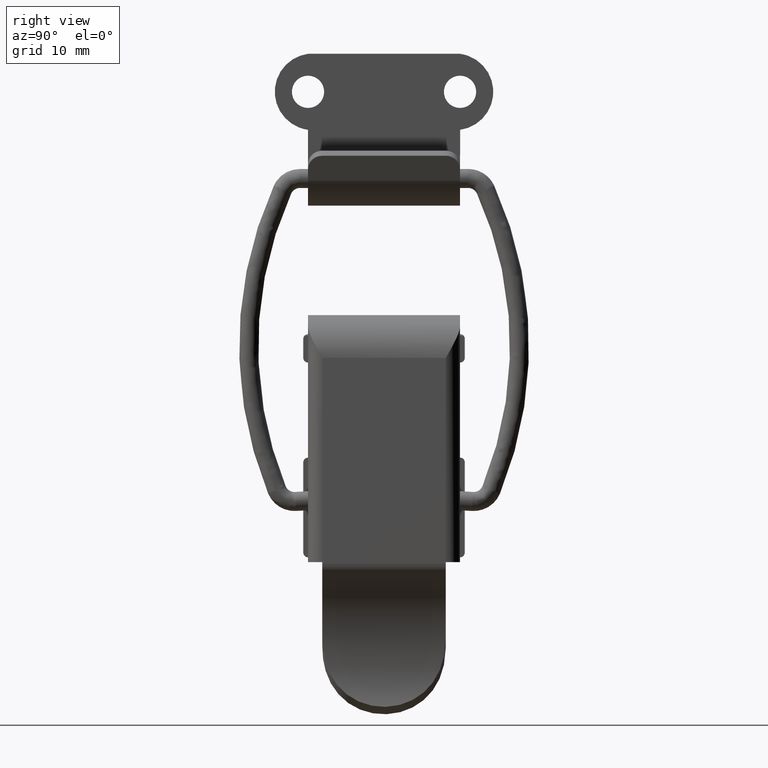
[diagram: clean part render]
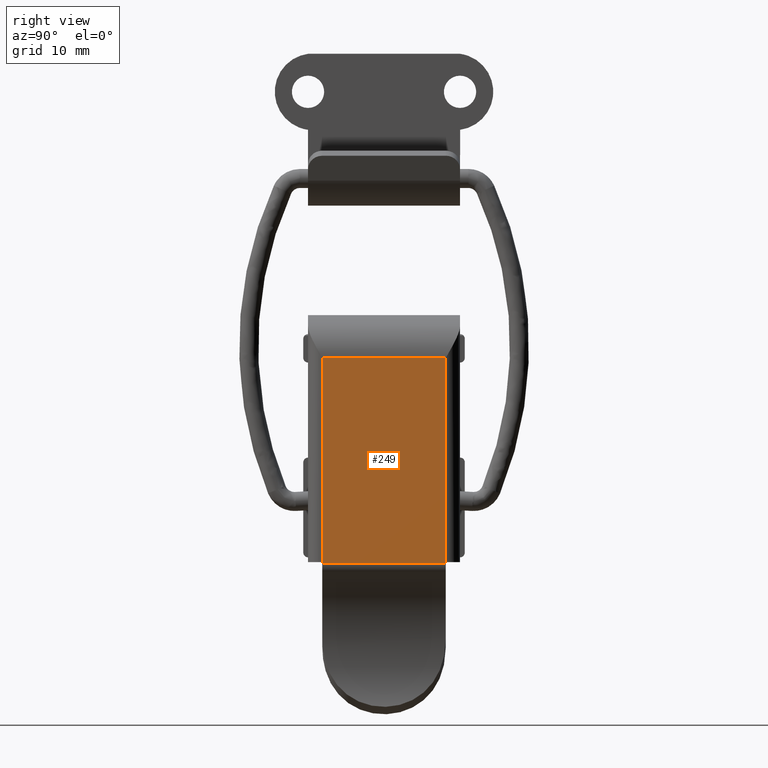
[diagram: same view with one face highlighted and labeled with its STEP entity id]
A machine part, right view. The second image highlights one B-rep face of the part: STEP entity #249.
In plain terms, the highlighted planar face has unit normal (1, 0, 0).
Its self-contained STEP definition (entity closure, byte-faithful):
#249=ADVANCED_FACE('',(#949),#948,.T.);
#948=PLANE('',#2100);
#949=FACE_OUTER_BOUND('',#2101,.T.);
#2097=CARTESIAN_POINT('',(8.00000000000E+00,2.00000000000E-01,1.76635544315E+01));
#2098=DIRECTION('',(1.00000000000E+00,0.00000000000E+00,0.00000000000E+00));
#2099=DIRECTION('',(0.00000000000E+00,0.00000000000E+00,-1.00000000000E+00));
#2100=AXIS2_PLACEMENT_3D('',#2097,#2098,#2099);
#2101=EDGE_LOOP('',(#2764,#2765,#2766,#2767,#2768,#2769));
#2764=ORIENTED_EDGE('',*,*,#3286,.T.);
#2765=ORIENTED_EDGE('',*,*,#3290,.T.);
#2766=ORIENTED_EDGE('',*,*,#3291,.T.);
#2767=ORIENTED_EDGE('',*,*,#3292,.F.);
#2768=ORIENTED_EDGE('',*,*,#3293,.F.);
#2769=ORIENTED_EDGE('',*,*,#3294,.T.);
#3286=EDGE_CURVE('',#4570,#4563,#4571,.T.);
#3290=EDGE_CURVE('',#4563,#4597,#4598,.T.);
#3291=EDGE_CURVE('',#4597,#4604,#4605,.T.);
#3292=EDGE_CURVE('',#4611,#4604,#4612,.T.);
#3293=EDGE_CURVE('',#4618,#4611,#4619,.T.);
#3294=EDGE_CURVE('',#4618,#4570,#4625,.T.);
#4563=VERTEX_POINT('',#6436);
#4570=VERTEX_POINT('',#6449);
#4571=LINE('',#6450,#6451);
#4597=VERTEX_POINT('',#6474);
#4598=LINE('',#6475,#6476);
#4604=VERTEX_POINT('',#6478);
#4605=LINE('',#6479,#6480);
#4611=VERTEX_POINT('',#6482);
#4612=LINE('',#6483,#6484);
#4618=VERTEX_POINT('',#6486);
#4619=LINE('',#6487,#6488);
#4625=LINE('',#6490,#6491);
#6436=CARTESIAN_POINT('',(8.00000000000E+00,1.50000000000E+00,1.55000000000E+01));
#6449=CARTESIAN_POINT('',(8.00000000000E+00,1.45000000000E+01,1.55000000000E+01));
#6450=CARTESIAN_POINT('',(8.00000000000E+00,1.45000000000E+01,1.55000000000E+01));
#6451=VECTOR('',#6452,1.30000000000E+01);
#6452=DIRECTION('',(0.00000000000E+00,-1.00000000000E+00,0.00000000000E+00));
#6474=CARTESIAN_POINT('',(8.00000000000E+00,1.50000000000E+00,-6.00000000000E+00));
#6475=CARTESIAN_POINT('',(8.00000000000E+00,1.50000000000E+00,1.55000000000E+01));
#6476=VECTOR('',#6477,2.15000000000E+01);
#6477=DIRECTION('',(0.00000000000E+00,0.00000000000E+00,-1.00000000000E+00));
#6478=CARTESIAN_POINT('',(8.00000000000E+00,1.50000000000E+00,-6.13554431494E+00));
#6479=CARTESIAN_POINT('',(8.00000000000E+00,1.50000000000E+00,-6.00000000000E+00));
#6480=VECTOR('',#6481,1.35544314942E-01);
#6481=DIRECTION('',(0.00000000000E+00,0.00000000000E+00,-1.00000000000E+00));
#6482=CARTESIAN_POINT('',(8.00000000000E+00,1.45000000000E+01,-6.13554431494E+00));
#6483=CARTESIAN_POINT('',(8.00000000000E+00,1.45000000000E+01,-6.13554431494E+00));
#6484=VECTOR('',#6485,1.30000000000E+01);
#6485=DIRECTION('',(0.00000000000E+00,-1.00000000000E+00,0.00000000000E+00));
#6486=CARTESIAN_POINT('',(8.00000000000E+00,1.45000000000E+01,-6.00000000000E+00));
#6487=CARTESIAN_POINT('',(8.00000000000E+00,1.45000000000E+01,-6.00000000000E+00));
#6488=VECTOR('',#6489,1.35544314942E-01);
#6489=DIRECTION('',(0.00000000000E+00,0.00000000000E+00,-1.00000000000E+00));
#6490=CARTESIAN_POINT('',(8.00000000000E+00,1.45000000000E+01,-6.00000000000E+00));
#6491=VECTOR('',#6492,2.15000000000E+01);
#6492=DIRECTION('',(0.00000000000E+00,0.00000000000E+00,1.00000000000E+00));